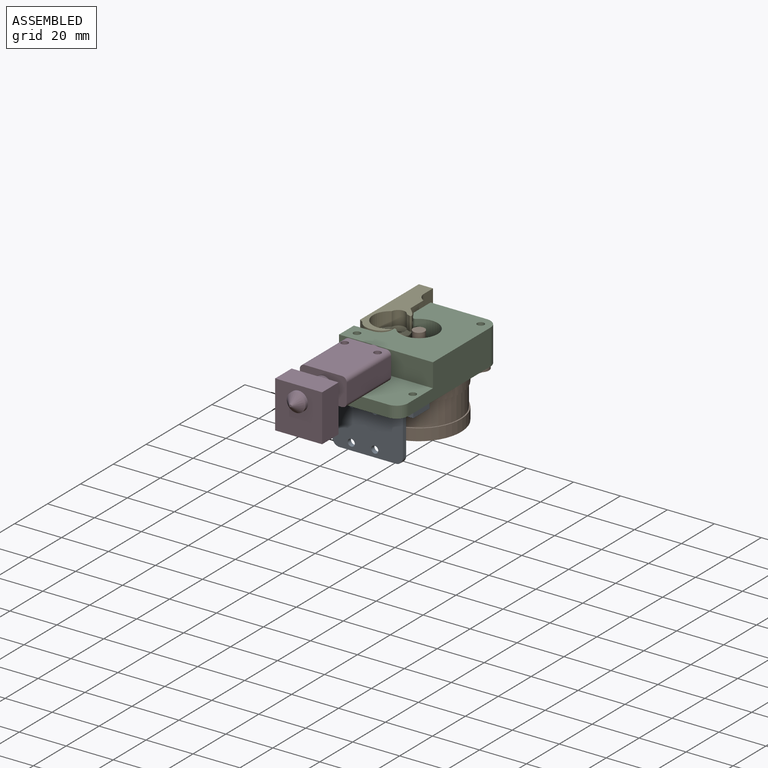
[diagram: assembled view]
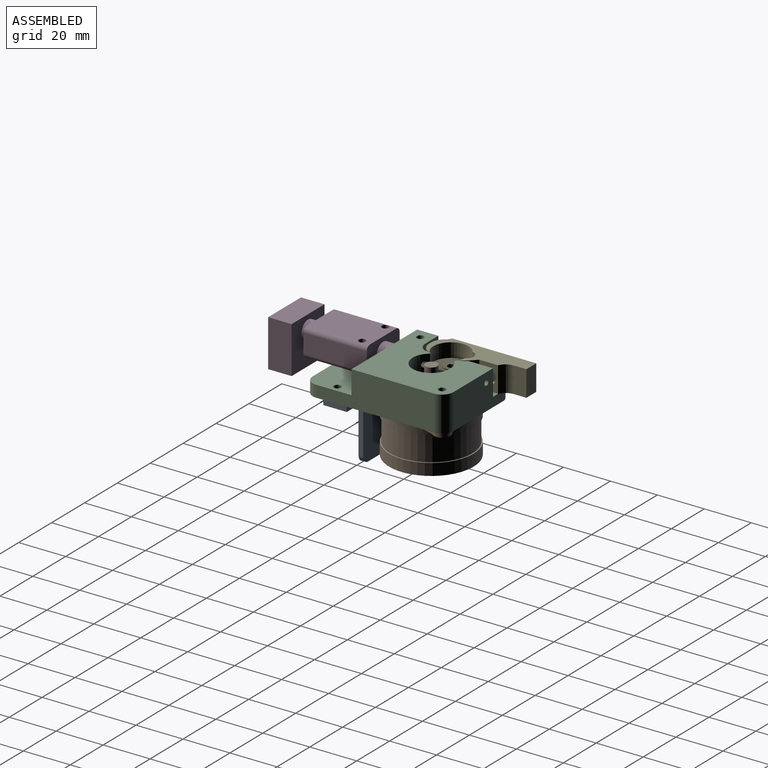
[diagram: assembled view, second angle]
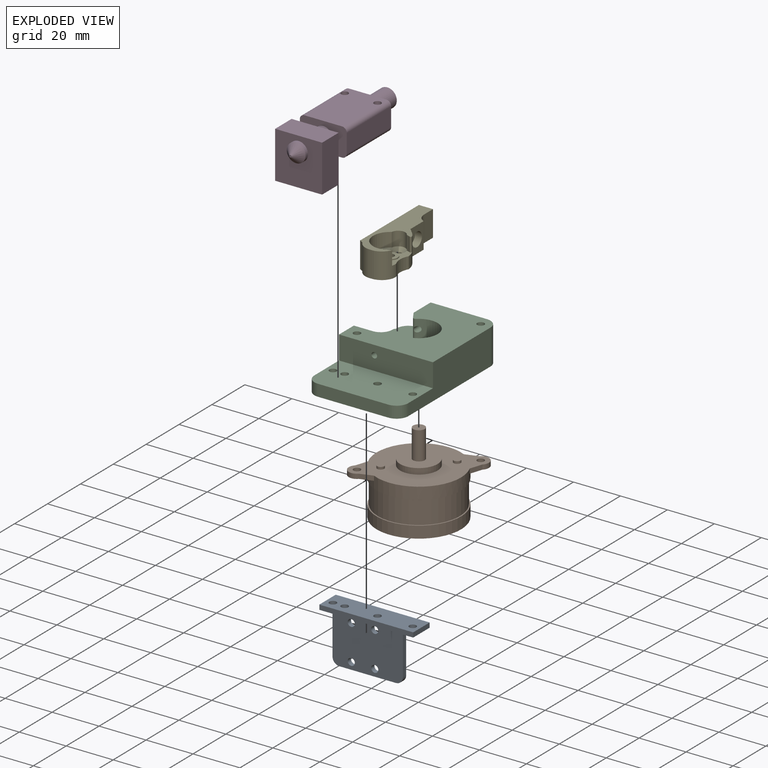
[diagram: exploded view]
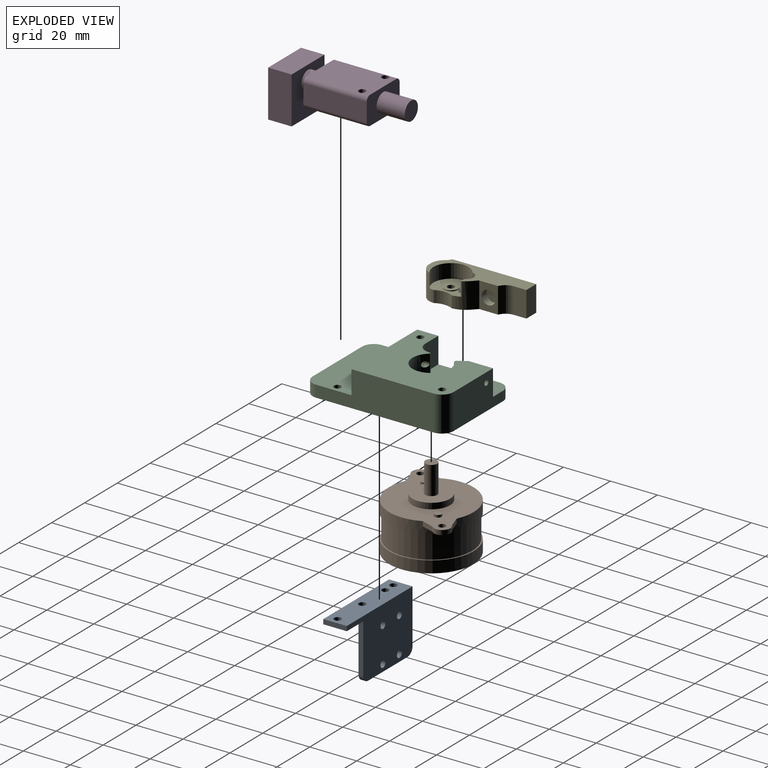
[diagram: exploded view, second angle]
ASSEMBLY  parts=5 mates=5
PART A: 19 faces, bbox 40x26x10 mm
  f0: plane 40x26mm, normal (0,0,1), area 767.9mm2, adj f1,f2,f8,f9,f11,f12,f13,f14
  f1: plane 10x2mm, normal (1,0,0), area 20mm2, adj f0,f3,f8,f9
  f2: plane 23x10mm, normal (-1,0,0), area 62mm2, adj f0,f3,f8,f9,f10,f17
  f3: plane 40x2mm, normal (0,0,-1), area 80mm2, adj f1,f2,f8,f9
  f4: cylinder r=1.5mm len=3mm, axis (0,-1,0), area 18.8mm2, adj f8,f9
  f5: cylinder r=1.5mm len=3mm, axis (0,-1,0), area 18.8mm2, adj f8,f9
  f6: cylinder r=1.5mm len=3mm, axis (0,-1,0), area 18.8mm2, adj f8,f9
  f7: cylinder r=1.5mm len=3mm, axis (0,-1,0), area 18.8mm2, adj f8,f9
  f8: plane 40x10mm, normal (0,1,0), area 311.7mm2, adj f0,f1,f2,f3,f4,f5,f6,f7
  f9: plane 40x10mm, normal (0,-1,0), area 371.7mm2, adj f0,f1,f2,f3,f4,f5,f6,f7
  f10: plane 30x24mm, normal (0,0,-1), area 687.9mm2, adj f2,f8,f11,f12,f13,f14,f15,f16
  f11: plane 24x2mm, normal (0,1,0), area 48mm2, adj f0,f10,f17,f18
  f12: plane 21x2mm, normal (1,0,0), area 42mm2, adj f0,f8,f10,f18
  f13: cylinder r=1.5mm len=3mm, axis (0,0,1), area 18.8mm2, adj f0,f10
  f14: cylinder r=1.5mm len=3mm, axis (0,0,1), area 18.8mm2, adj f0,f10
  f15: cylinder r=1.5mm len=3mm, axis (0,0,1), area 18.8mm2, adj f0,f10
  f16: cylinder r=1.5mm len=3mm, axis (0,0,1), area 18.8mm2, adj f0,f10
  f17: cylinder r=3mm len=3mm, axis (0,0,1), area 9.4mm2, adj f0,f2,f10,f11
  f18: cylinder r=3mm len=3mm, axis (0,0,1), area 9.4mm2, adj f0,f10,f11,f12
PART B: 25 faces, bbox 50.8x36x34.5 mm
  f0: plane 12x8.45mm, normal (0,0,-1), area 50.9mm2, adj f1,f5,f6,f7,f8
  f1: cylinder r=18mm len=36mm, axis (0,0,-1), area 516.6mm2, adj f0,f2,f4,f5,f8,f10,f11,f14
  f2: plane 4.95x2.5mm, normal (0.45,-0.89,0), area 11.1mm2, adj f1,f3,f10,f11
  f3: cylinder r=3.5mm len=7mm, axis (0,0,-1), area 22mm2, adj f2,f4,f10,f11
  f4: plane 4.95x2.5mm, normal (0.45,0.89,0), area 11.1mm2, adj f1,f3,f10,f11
  f5: plane 4.95x2.5mm, normal (-0.45,0.89,0), area 11.1mm2, adj f0,f1,f6,f10
  f6: cylinder r=3.5mm len=7mm, axis (0,0,-1), area 22mm2, adj f0,f5,f8,f10
  f7: cylinder r=1.5mm len=3mm, axis (0,0,-1), area 18.8mm2, adj f0,f10
  f8: plane 4.95x2.5mm, normal (-0.45,-0.89,0), area 11.1mm2, adj f0,f1,f6,f10
  f9: cylinder r=1.5mm len=3mm, axis (0,0,-1), area 18.8mm2, adj f10,f11
  f10: plane 50.84x36mm, normal (0,0,1), area 904.5mm2, adj f1,f2,f3,f4,f5,f6,f7,f8
  f11: plane 12x8.45mm, normal (0,0,-1), area 50.9mm2, adj f1,f2,f3,f4,f9
  f12: cylinder r=8mm len=16mm, axis (0,0,-1), area 125.7mm2, adj f10,f13
  f13: plane 16x16mm, normal (0,0,1), area 181.4mm2, adj f12,f23
  f14: plane 36x36mm, normal (0,0,-1), area 55.8mm2, adj f1,f15
  f15: cylinder r=17.5mm len=35mm, axis (0,0,1), area 1099.6mm2, adj f14,f18
  f16: cylinder r=18mm len=36mm, axis (0,0,1), area 565.5mm2, adj f17,f18
  f17: plane 36x36mm, normal (0,0,-1), area 1017.9mm2, adj f16
  f18: plane 36x36mm, normal (0,0,1), area 55.8mm2, adj f15,f16
  f19: cylinder r=1.5mm len=3mm, axis (0,0,-1), area 9.4mm2, adj f10,f20
  f20: plane 3x3mm, normal (0,0,1), area 7.1mm2, adj f19
  f21: cylinder r=1.5mm len=3mm, axis (0,0,-1), area 9.4mm2, adj f10,f22
  f22: plane 3x3mm, normal (0,0,1), area 7.1mm2, adj f21
  f23: cylinder r=2.5mm len=12mm, axis (0,0,-1), area 188.5mm2, adj f13,f24
  f24: plane 5x5mm, normal (0,0,1), area 19.6mm2, adj f23
PART C: 37 faces, bbox 40x15x60 mm
  f0: plane 40x10mm, normal (0,0,-1), area 395.5mm2, adj f1,f2,f5,f11,f23
  f1: plane 50x15mm, normal (-1,0,0), area 314mm2, adj f0,f2,f9,f13,f19,f23,f29,f32
  f2: plane 40x40mm, normal (0,-1,0), area 1009.1mm2, adj f0,f1,f3,f4,f5,f6,f7,f8
  f3: plane 11x10.13mm, normal (-1,0,0), area 83.1mm2, adj f2,f6,f13,f14,f16
  f4: cylinder r=8mm len=16mm, axis (0,1,0), area 608.8mm2, adj f2,f9,f10,f11,f13,f17,f21
  f5: plane 50x15mm, normal (1,0,0), area 600mm2, adj f0,f2,f9,f23,f30,f31
  f6: plane 30x15mm, normal (0,0,1), area 379.5mm2, adj f2,f3,f9,f10,f13,f31,f32
  f7: cylinder r=1.5mm len=15mm, axis (0,1,0), area 141.4mm2, adj f2,f9
  f8: cylinder r=1.5mm len=15mm, axis (0,1,0), area 141.4mm2, adj f2,f9
  f9: plane 60x40mm, normal (0,1,0), area 2116mm2, adj f1,f4,f5,f6,f7,f8,f22,f24
  f10: cylinder r=1.2mm len=14.29mm, axis (0,0,1), area 103.3mm2, adj f4,f6,f17
  f11: cylinder r=1.2mm len=14.92mm, axis (0,0,1), area 104.4mm2, adj f0,f4,f21
  f12: plane 11x0.52mm, normal (-1,0,0), area 5.8mm2, adj f2,f13,f20,f21
  f13: plane 31x14.67mm, normal (0,-1,0), area 360mm2, adj f1,f3,f4,f6,f12,f16,f17,f18
  f14: cylinder r=3mm len=6mm, axis (1,0,0), area 37.7mm2, adj f3,f15
  f15: plane 6x6mm, normal (-1,0,0), area 28.3mm2, adj f14
  f16: cylinder r=1mm len=11mm, axis (0,-1,0), area 8.5mm2, adj f2,f3,f13,f18
  f17: cylinder r=1mm len=11mm, axis (0,1,0), area 19.8mm2, adj f2,f4,f10,f13,f18
  f18: plane 11x2.81mm, normal (-0.85,0,-0.53), area 36.6mm2, adj f2,f13,f16,f17
  f19: plane 11x8mm, normal (0,0,1), area 88mm2, adj f1,f2,f13,f20
  f20: cylinder r=5mm len=11mm, axis (0,-1,0), area 86.4mm2, adj f2,f12,f13,f19
  f21: cylinder r=0.5mm len=11mm, axis (0,1,0), area 13.4mm2, adj f2,f4,f11,f12,f13
  f22: cylinder r=1.25mm len=4mm, axis (0,-1,0), area 31.4mm2, adj f9,f13
  f23: plane 40x20mm, normal (0,-1,0), area 761mm2, adj f0,f1,f5,f24,f25,f26,f27,f28
  f24: plane 30x5mm, normal (0,0,-1), area 150mm2, adj f9,f23,f29,f30
  f25: cylinder r=1.5mm len=5mm, axis (0,-1,0), area 47.1mm2, adj f9,f23
  f26: cylinder r=1.5mm len=5mm, axis (0,-1,0), area 47.1mm2, adj f9,f23
  f27: cylinder r=1.5mm len=5mm, axis (0,-1,0), area 47.1mm2, adj f9,f23
  f28: cylinder r=1.5mm len=5mm, axis (0,-1,0), area 47.1mm2, adj f9,f23
  f29: cylinder r=5mm len=5mm, axis (0,1,0), area 39.3mm2, adj f1,f9,f23,f24
  f30: cylinder r=5mm len=5mm, axis (0,-1,0), area 39.3mm2, adj f5,f9,f23,f24
  f31: cylinder r=5mm len=15mm, axis (0,1,0), area 117.8mm2, adj f2,f5,f6,f9
  f32: cylinder r=5mm len=5mm, axis (0,-1,0), area 31.4mm2, adj f1,f6,f9,f13
  f33: cylinder r=1.5mm len=3mm, axis (0,1,0), area 28.3mm2, adj f9,f34
  f34: plane 3x3mm, normal (0,1,0), area 7.1mm2, adj f33
  f35: cylinder r=1.5mm len=3mm, axis (0,1,0), area 28.3mm2, adj f9,f36
  f36: plane 3x3mm, normal (0,1,0), area 7.1mm2, adj f35
PART D: 24 faces, bbox 20x20x59 mm
  f0: cylinder r=4mm len=8mm, axis (0,0,-1), area 125.7mm2, adj f6,f14
  f1: plane 27x16mm, normal (0,-1,0), area 419.4mm2, adj f5,f6,f18,f19,f20,f23
  f2: plane 27x8mm, normal (1,0,0), area 216mm2, adj f5,f6,f20,f21
  f3: plane 27x16mm, normal (0,1,0), area 419.4mm2, adj f5,f6,f18,f19,f21,f22
  f4: plane 27x8mm, normal (-1,0,0), area 216mm2, adj f5,f6,f22,f23
  f5: plane 20x12mm, normal (0,0,1), area 186.3mm2, adj f1,f2,f3,f4,f7,f20,f21,f22
  f6: plane 20x12mm, normal (0,0,-1), area 186.3mm2, adj f0,f1,f2,f3,f4,f20,f21,f22
  f7: cylinder r=4mm len=12mm, axis (0,0,-1), area 301.6mm2, adj f5,f8
  f8: plane 8x8mm, normal (0,0,1), area 50.3mm2, adj f7
  f9: plane 20x10mm, normal (0,1,0), area 200mm2, adj f10,f12,f13,f14
  f10: plane 20x10mm, normal (1,0,0), area 200mm2, adj f9,f11,f13,f14
  f11: plane 20x10mm, normal (0,-1,0), area 200mm2, adj f10,f12,f13,f14
  f12: plane 20x10mm, normal (-1,0,0), area 200mm2, adj f9,f11,f13,f14
  f13: plane 20x20mm, normal (0,0,-1), area 349.7mm2, adj f9,f10,f11,f12,f17
  f14: plane 20x20mm, normal (0,0,1), area 349.7mm2, adj f0,f9,f10,f11,f12
  f15: plane 1x1mm, normal (0,0,-1), area 0.8mm2, adj f16
  f16: cone r=4mm half-angle=45deg, axis (0,0,1), area 70mm2, adj f15,f17
  f17: cylinder r=4mm len=8mm, axis (0,0,-1), area 37.7mm2, adj f13,f16
  f18: cylinder r=1.5mm len=12mm, axis (0,-1,0), area 112.9mm2, adj f1,f3,f20,f21
  f19: cylinder r=1.5mm len=12mm, axis (0,-1,0), area 112.9mm2, adj f1,f3,f22,f23
  f20: cylinder r=2mm len=27mm, axis (0,0,1), area 84mm2, adj f1,f2,f5,f6,f18
  f21: cylinder r=2mm len=27mm, axis (0,0,-1), area 84mm2, adj f2,f3,f5,f6,f18
  f22: cylinder r=2mm len=27mm, axis (0,0,1), area 84mm2, adj f3,f4,f5,f6,f19
  f23: cylinder r=2mm len=27mm, axis (0,0,-1), area 84mm2, adj f1,f4,f5,f6,f19
PART E: 27 faces, bbox 14x11x40 mm
  f0: plane 40x13.71mm, normal (0,-1,0), area 246.1mm2, adj f4,f8,f9,f11,f14,f15,f16,f19
  f1: plane 40x14mm, normal (0,1,0), area 391mm2, adj f3,f5,f6,f7,f8,f14,f15,f16
  f2: cylinder r=3mm len=6mm, axis (0,-1,0), area 7.5mm2, adj f10,f13
  f3: cylinder r=1.5mm len=5.4mm, axis (0,-1,0), area 50.9mm2, adj f1,f13
  f4: cylinder r=7.5mm len=13.86mm, axis (0,-1,0), area 146.8mm2, adj f0,f10,f11,f22
  f5: cylinder r=1.5mm len=3.5mm, axis (0,-1,0), area 33mm2, adj f1,f12
  f6: plane 5x0.13mm, normal (1,0,0), area 0.6mm2, adj f1,f7,f10,f22
  f7: cylinder r=8mm len=7.75mm, axis (0,1,0), area 40.4mm2, adj f1,f6,f10,f20
  f8: plane 11x1mm, normal (0,0,-1), area 11mm2, adj f0,f1,f21,f22
  f9: cylinder r=7.5mm len=6mm, axis (0,-1,0), area 9.9mm2, adj f0,f10,f11,f26
  f10: plane 14.94x12.5mm, normal (0,-1,0), area 102.5mm2, adj f2,f4,f6,f7,f9,f12,f20,f22
  f11: cylinder r=3mm len=6mm, axis (0,1,0), area 46.3mm2, adj f0,f4,f9,f12
  f12: cone r=1.5mm half-angle=45deg, axis (0,-1,0), area 30mm2, adj f5,f10,f11
  f13: plane 6x6mm, normal (0,-1,0), area 21.2mm2, adj f2,f3
  f14: plane 11x5.42mm, normal (1,0,0), area 59.6mm2, adj f0,f1,f15,f23
  f15: plane 11x6mm, normal (0,0,1), area 66mm2, adj f0,f1,f14,f24
  f16: plane 11x8mm, normal (1,0,0), area 59.7mm2, adj f0,f1,f17,f19,f23
  f17: cylinder r=3mm len=6mm, axis (1,0,0), area 56.5mm2, adj f16,f18
  f18: plane 6x6mm, normal (1,0,0), area 28.3mm2, adj f17
  f19: plane 11x2.13mm, normal (0.71,0,0.71), area 33.1mm2, adj f0,f1,f16,f20
  f20: cylinder r=10mm len=11mm, axis (0,1,0), area 52.1mm2, adj f0,f1,f7,f10,f19,f26
  f21: cylinder r=6mm len=11mm, axis (0,-1,0), area 72.5mm2, adj f0,f1,f8,f25
  f22: cylinder r=6mm len=11mm, axis (0,-1,0), area 92.5mm2, adj f0,f1,f4,f6,f8,f10
  f23: cylinder r=5mm len=11mm, axis (0,1,0), area 63.8mm2, adj f0,f1,f14,f16
  f24: plane 35.71x11mm, normal (-1,0,0), area 392.8mm2, adj f0,f1,f15,f25
  f25: plane 11x1.66mm, normal (-0.52,0,-0.85), area 21.4mm2, adj f0,f1,f21,f24
  f26: cylinder r=0.5mm len=6mm, axis (0,1,0), area 7.5mm2, adj f0,f9,f10,f20
PLACE A rot(axis=(-1,0,0),90deg) t=(19.57,9.48,6.22)mm
PLACE B rot(axis=(0,0,1),45deg) t=(19.57,9.48,4.22)mm
PLACE C rot(axis=(-1,0,0),90deg) t=(19.57,9.48,6.22)mm
PLACE D rot(axis=(-1,0,0),90deg) t=(14.57,-41.52,17.22)mm
PLACE E rot(axis=(-1,0,0),90deg) t=(19.57,9.48,6.22)mm
MATE fastened C.f22 <-> E.f5  axis (0,0,1) through (6.57,15.48,10.22)mm
MATE revolute B.f3 <-> C.f7  axis (0,0,1) through (35.07,24.98,6.22)mm
MATE fastened C.f26 <-> D.f19  axis (0,0,1) through (7.57,-18.52,11.22)mm
MATE fastened A.f6 <-> C.f28  axis (0,0,1) through (36.57,-18.52,6.22)mm
MATE revolute B.f6 <-> C.f8  axis (0,0,1) through (4.07,-6.02,6.22)mm
